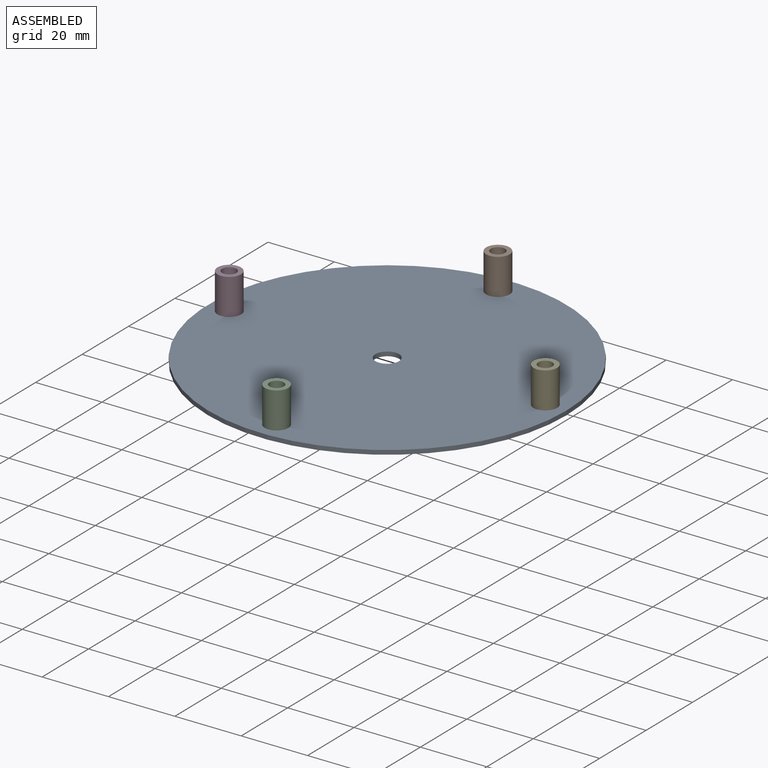
[diagram: assembled view]
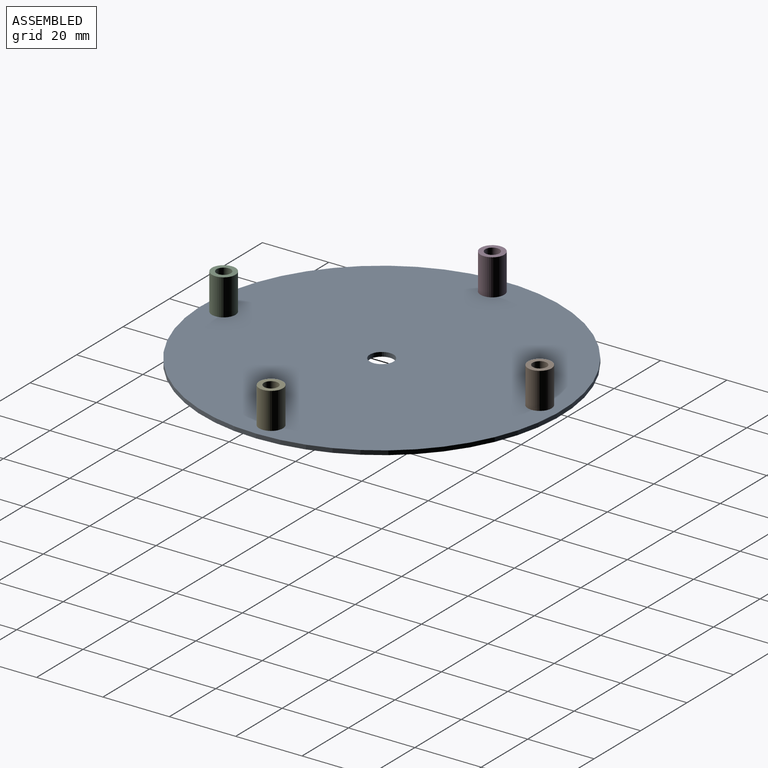
[diagram: assembled view, second angle]
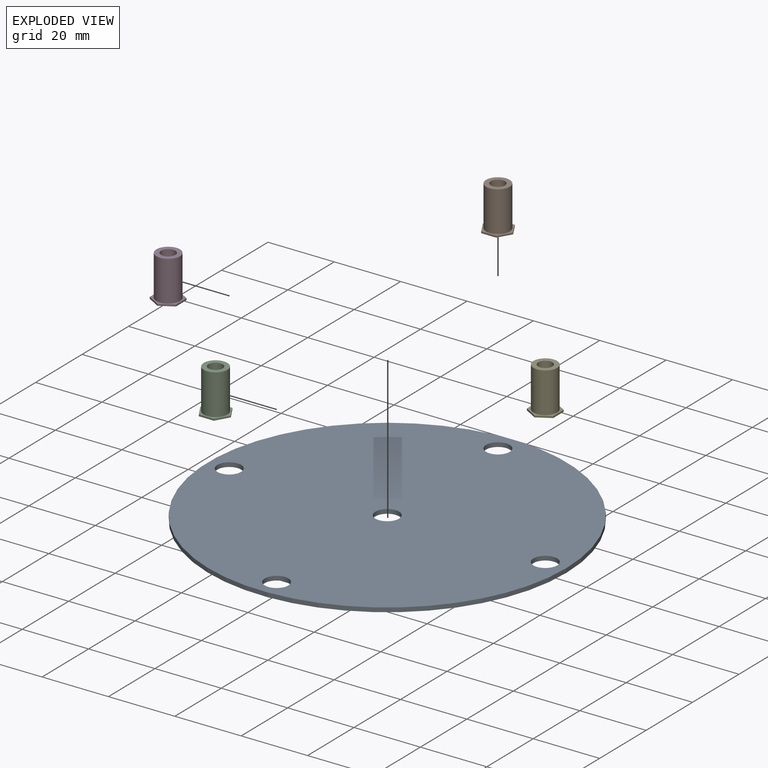
[diagram: exploded view]
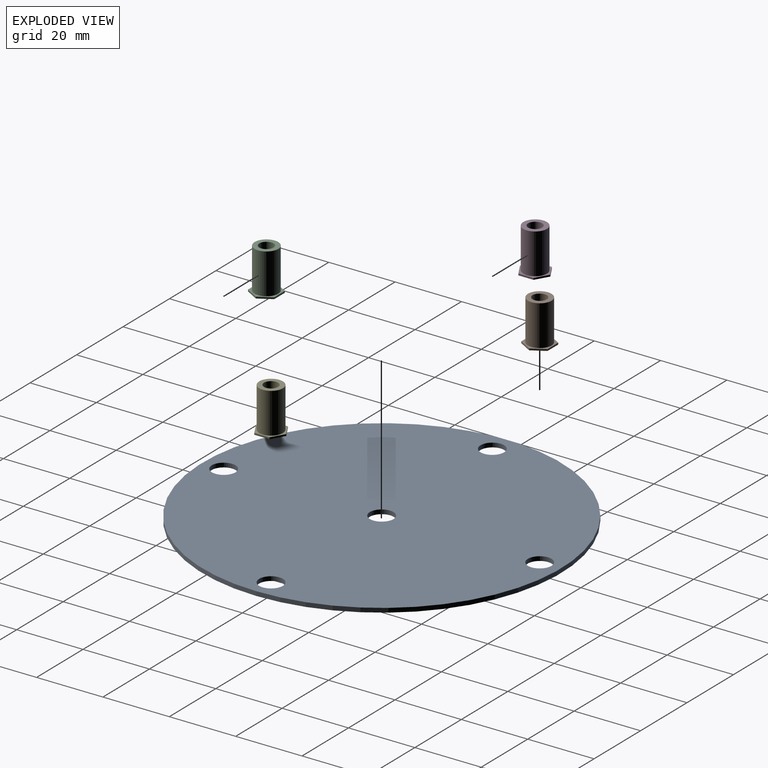
[diagram: exploded view, second angle]
ASSEMBLY  parts=5 mates=2
PART A: 8 faces, bbox 108x108x1.3 mm
  f0: cylinder r=53.98mm len=107.95mm, axis (0,0,-1), area 437.6mm2, adj f1,f2
  f1: plane 107.95x107.95mm, normal (0,0,1), area 8952mm2, adj f0,f3,f4,f5,f6,f7
  f2: plane 107.95x107.95mm, normal (0,0,-1), area 8952mm2, adj f0,f3,f4,f5,f6,f7
  f3: cylinder r=3.57mm len=7.14mm, axis (0,0,1), area 29mm2, adj f1,f2
  f4: cylinder r=3.57mm len=7.14mm, axis (0,0,1), area 29mm2, adj f1,f2
  f5: cylinder r=3.57mm len=7.14mm, axis (0,0,1), area 29mm2, adj f1,f2
  f6: cylinder r=3.57mm len=7.14mm, axis (0,0,1), area 29mm2, adj f1,f2
  f7: cylinder r=3.57mm len=7.14mm, axis (0,0,1), area 29mm2, adj f1,f2
PART B: 11 faces, bbox 9.2x7.9x12.7 mm
  f0: plane 3.96x2.29mm, normal (0.87,-0.5,0), area 2.3mm2, adj f1,f5,f6,f7
  f1: plane 3.96x2.29mm, normal (0.87,0.5,0), area 2.3mm2, adj f0,f2,f6,f7
  f2: plane 4.58x0.51mm, normal (0,1,0), area 2.3mm2, adj f1,f3,f6,f7
  f3: plane 3.96x2.29mm, normal (-0.87,0.5,0), area 2.3mm2, adj f2,f4,f6,f7
  f4: plane 3.96x2.29mm, normal (-0.87,-0.5,0), area 2.3mm2, adj f3,f5,f6,f7
  f5: plane 4.58x0.51mm, normal (0,-1,0), area 2.3mm2, adj f0,f4,f6,f7
  f6: plane 9.15x7.93mm, normal (0,0,1), area 14.7mm2, adj f0,f1,f2,f3,f4,f5,f8
  f7: plane 9.15x7.93mm, normal (0,0,-1), area 39.9mm2, adj f0,f1,f2,f3,f4,f5,f10
  f8: cylinder r=3.56mm len=12.19mm, axis (0,0,-1), area 272.4mm2, adj f6,f9
  f9: plane 7.11x7.11mm, normal (0,0,1), area 25.3mm2, adj f8,f10
  f10: cylinder r=2.15mm len=12.7mm, axis (0,0,1), area 171.3mm2, adj f7,f9
PART C: same geometry as B
PART D: same geometry as B
PART E: same geometry as B
PLACE A at identity fixed
PLACE B t=(0,47.63,-0.51)mm
PLACE C rot(axis=(0,0,1),180deg) t=(0,-47.62,-0.51)mm
PLACE D rot(axis=(0,0,1),90deg) t=(-47.63,0,-0.51)mm
PLACE E rot(axis=(0,0,-1),90deg) t=(47.63,0,-0.51)mm
MATE cylindrical B.f8 <-> A.f7  axis (0,0,-1) through (0,47.63,6.1)mm
MATE planar B.f10 <-> A.f0  axis (0,0,1) through (0,47.63,0)mm
